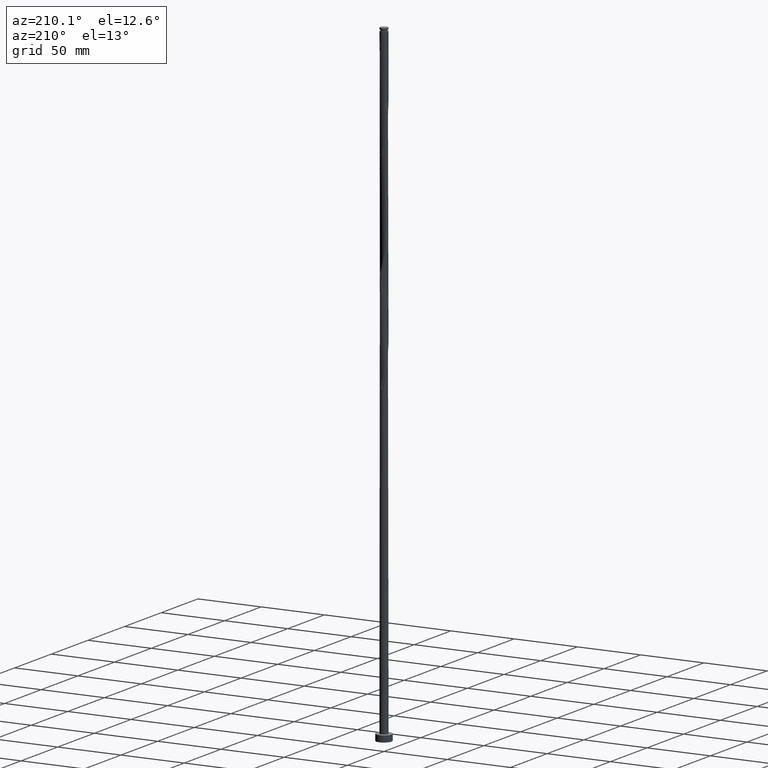
[diagram: clean part render]
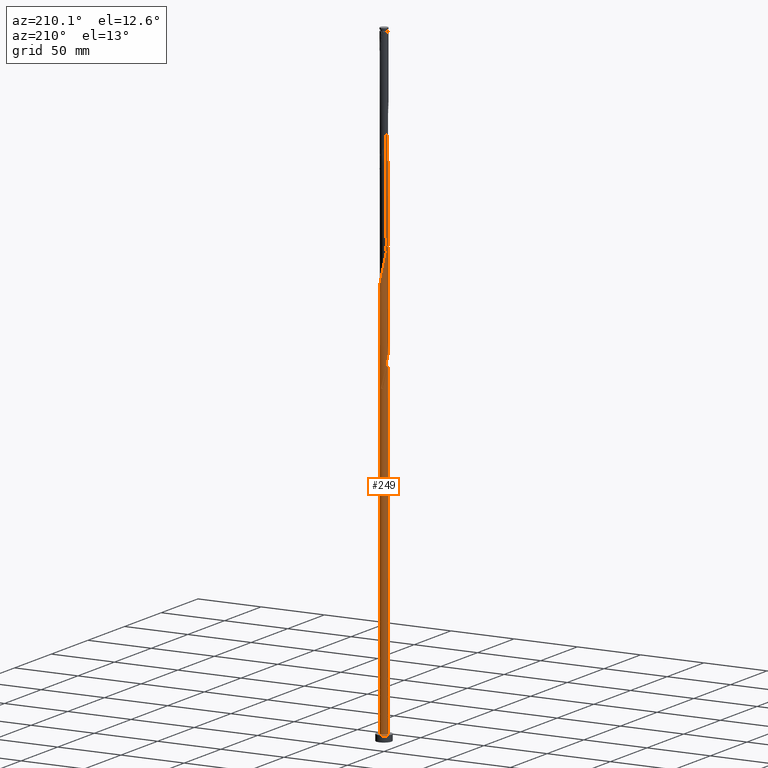
[diagram: same view with one face highlighted and labeled with its STEP entity id]
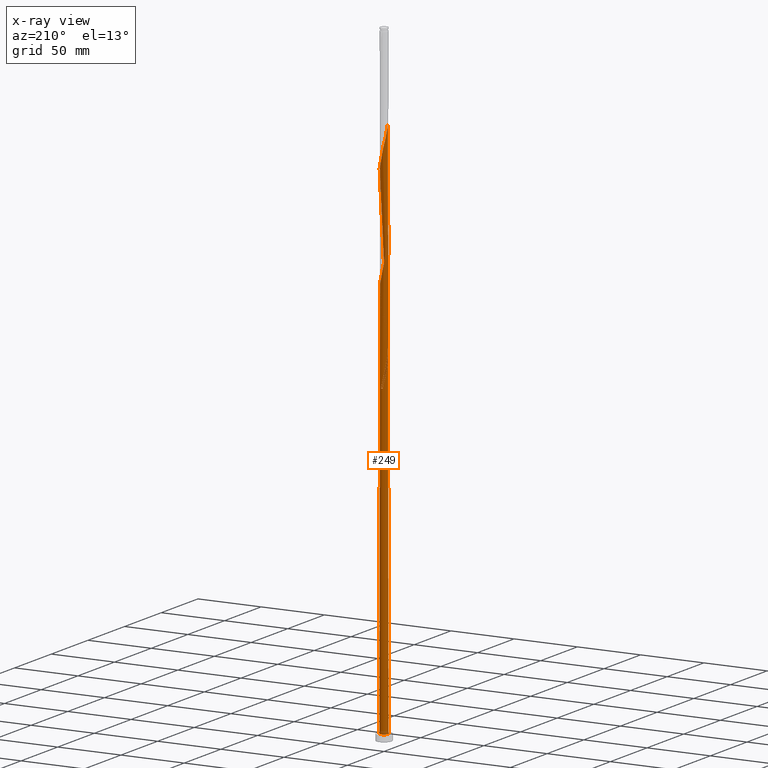
[diagram: x-ray of the same camera — body ghosted, the highlighted face saturated]
A machine part, auxiliary view. The second image highlights one B-rep face of the part: STEP entity #249.
The next image is the same camera in x-ray: the body ghosted, the highlighted face saturated — about 0% of this face is hidden behind the body in this view.
In plain terms, the highlighted cylindrical surface (bore or boss wall) has radius 3.1 mm, axis along (-0, -0, -1).
Its self-contained STEP definition (entity closure, byte-faithful):
#1 = CARTESIAN_POINT ( 'NONE',  ( -2.868731631591776576, 1.174895240395844365, 260.5845147440910523 ) ) ;
#22 = CARTESIAN_POINT ( 'NONE',  ( 0.6168922110061095809, 3.038000000000000256, 247.5636814107576811 ) ) ;
#24 = CARTESIAN_POINT ( 'NONE',  ( 2.400032639001089318, 1.985715407613430683, 316.5740980774244235 ) ) ;
#35 = CARTESIAN_POINT ( 'NONE',  ( -3.101192184336782454, 0.2929665238766490654, 347.8240980774242530 ) ) ;
#46 = CARTESIAN_POINT ( 'NONE',  ( 1.966522826515896938, 2.415783583249094146, 319.1782647440911092 ) ) ;
#47 = CIRCLE ( 'NONE', #1166, 3.100000000000000089 ) ;
#59 = CARTESIAN_POINT ( 'NONE',  ( -2.415783583249094590, 1.966522826515896938, 340.0115980774243667 ) ) ;
#70 = CARTESIAN_POINT ( 'NONE',  ( 1.457440644646406991, 2.753014550567536300, 321.7824314107576811 ) ) ;
#80 = CARTESIAN_POINT ( 'NONE',  ( 2.200749495431261415, -2.183277732758494238, 380.3761814107576242 ) ) ;
#89 = CARTESIAN_POINT ( 'NONE',  ( 2.400032639001089318, 1.985715407613430683, 399.9074314107576242 ) ) ;
#91 = CARTESIAN_POINT ( 'NONE',  ( -2.741310543123277377, 1.479337302465211890, 264.4907647440910523 ) ) ;
#92 = EDGE_CURVE ( 'NONE', #1476, #1601, #879, .T. ) ;
#99 = CARTESIAN_POINT ( 'NONE',  ( 0.6168922110061095809, 3.038000000000000256, 247.5636814107576811 ) ) ;
#105 = CARTESIAN_POINT ( 'NONE',  ( -2.584399066908316556, 1.711981735581151298, 424.6470147440911092 ) ) ;
#116 = CARTESIAN_POINT ( 'NONE',  ( 2.977241420417908291, 0.9161090944051727414, 394.6990980774243667 ) ) ;
#127 = CARTESIAN_POINT ( 'NONE',  ( -3.099975381959439780, -0.01235440186519696018, 265.7928480774244235 ) ) ;
#139 = CARTESIAN_POINT ( 'NONE',  ( -1.711981735581151520, -2.584399066908316556, 278.8136814107576811 ) ) ;
#149 = CARTESIAN_POINT ( 'NONE',  ( -0.6168922110061083597, 3.038000000000004253, 247.5636814107576811 ) ) ;
#162 = CYLINDRICAL_SURFACE ( 'NONE', #1021, 3.100000000000000089 ) ;
#190 = CARTESIAN_POINT ( 'NONE',  ( 2.984448712616015520, -0.8923498361452829597, 303.5532647440910523 ) ) ;
#200 = CARTESIAN_POINT ( 'NONE',  ( -1.174895240395844365, -2.868731631591776576, 364.7511814107577379 ) ) ;
#209 = VERTEX_POINT ( 'NONE', #302 ) ;
#210 = CARTESIAN_POINT ( 'NONE',  ( 3.101192184336781565, -0.2929665238766496760, 306.1574314107576811 ) ) ;
#219 = CARTESIAN_POINT ( 'NONE',  ( -2.200749495431262748, 2.183277732758493350, 338.7095147440911660 ) ) ;
#233 = CARTESIAN_POINT ( 'NONE',  ( 0.5926581800109677056, 3.042820448476398099, 325.6886814107576811 ) ) ;
#242 = CARTESIAN_POINT ( 'NONE',  ( -1.197723198435193703, 2.859275981770593944, 416.8345147440910523 ) ) ;
#249 = ADVANCED_FACE ( 'NONE', ( #1704 ), #162, .T. ) ;
#251 = CARTESIAN_POINT ( 'NONE',  ( 3.098758579582098882, 0.3176753276070441445, 392.0949314107577379 ) ) ;
#259 = CARTESIAN_POINT ( 'NONE',  ( -2.868731631591776576, 1.174895240395844365, 427.2511814107577379 ) ) ;
#260 = CARTESIAN_POINT ( 'NONE',  ( -3.099975381959436671, 0.01235440186519773734, 271.0011814107577379 ) ) ;
#272 = VERTEX_POINT ( 'NONE', #22 ) ;
#273 = CARTESIAN_POINT ( 'NONE',  ( -3.100000000000003642, 0.2990874262798472460, 431.1308376606780257 ) ) ;
#275 = CARTESIAN_POINT ( 'NONE',  ( 0.3176753276070437559, 3.098758579582094885, 248.8657647440910239 ) ) ;
#282 = ORIENTED_EDGE ( 'NONE', *, *, #836, .T. ) ;
#292 = DIRECTION ( 'NONE',  ( 1.000000000000000000, 0.000000000000000000, 0.000000000000000000 ) ) ;
#302 = CARTESIAN_POINT ( 'NONE',  ( -3.100000000000000089, 0.000000000000000000, 5.000000000000000000 ) ) ;
#313 = CARTESIAN_POINT ( 'NONE',  ( -2.415783583249094590, 1.966522826515896938, 256.6782647440910523 ) ) ;
#330 = EDGE_CURVE ( 'NONE', #693, #209, #1886, .T. ) ;
#339 = CARTESIAN_POINT ( 'NONE',  ( -2.570671591062184902, -1.732526355039321508, 356.9386814107576811 ) ) ;
#352 = CARTESIAN_POINT ( 'NONE',  ( 1.711981735581152186, 2.584399066908315667, 320.4803480774243098 ) ) ;
#359 = CARTESIAN_POINT ( 'NONE',  ( -3.100000000000000089, 0.000000000000000000, 500.0000000000000000 ) ) ;
#362 = CARTESIAN_POINT ( 'NONE',  ( -2.859275981770593944, -1.197723198435193703, 354.3345147440909955 ) ) ;
#373 = CARTESIAN_POINT ( 'NONE',  ( -0.6168922110061082487, 3.038000000000003364, 330.8970147440910523 ) ) ;
#382 = CARTESIAN_POINT ( 'NONE',  ( -3.100000000000004086, 1.339161813458410899E-15, 432.4068177660942638 ) ) ;
#383 = ORIENTED_EDGE ( 'NONE', *, *, #1723, .T. ) ;
#384 = CARTESIAN_POINT ( 'NONE',  ( -3.042820448476398987, 0.5926581800109660403, 346.5220147440909955 ) ) ;
#391 = ORIENTED_EDGE ( 'NONE', *, *, #708, .F. ) ;
#392 = CARTESIAN_POINT ( 'NONE',  ( 2.741310543123280485, 1.479337302465212112, 397.3032647440909386 ) ) ;
#403 = CARTESIAN_POINT ( 'NONE',  ( 1.732526355039321508, -2.570671591062184902, 377.7720147440911660 ) ) ;
#404 = CARTESIAN_POINT ( 'NONE',  ( -0.2929665238766484547, 3.101192184336778901, 251.4699314107577379 ) ) ;
#409 = ORIENTED_EDGE ( 'NONE', *, *, #92, .F. ) ;
#410 = CARTESIAN_POINT ( 'NONE',  ( 0.8923498361452831817, 2.984448712616015520, 407.7199314107577379 ) ) ;
#417 = EDGE_LOOP ( 'NONE', ( #391, #684, #829, #282, #1639, #565, #409, #383, #1421 ) ) ;
#418 = CARTESIAN_POINT ( 'NONE',  ( 2.868731631591776576, -1.174895240395844365, 385.5845147440910523 ) ) ;
#424 = CARTESIAN_POINT ( 'NONE',  ( -0.9161090944051741847, 2.977241420417907403, 415.5324314107577948 ) ) ;
#432 = AXIS2_PLACEMENT_3D ( 'NONE', #1219, #469, #1701 ) ;
#442 = CARTESIAN_POINT ( 'NONE',  ( -2.400032639001089318, -1.985715407613431127, 274.9074314107576242 ) ) ;
#469 = DIRECTION ( 'NONE',  ( 0.000000000000000000, 0.000000000000000000, 1.000000000000000000 ) ) ;
#496 = CARTESIAN_POINT ( 'NONE',  ( -1.966522826515897382, -2.415783583249094146, 360.8449314107576811 ) ) ;
#504 = DIRECTION ( 'NONE',  ( -0.000000000000000000, -0.000000000000000000, -1.000000000000000000 ) ) ;
#509 = CARTESIAN_POINT ( 'NONE',  ( 3.099975381959440668, 0.01235440186519599741, 307.4595147440909955 ) ) ;
#522 = CARTESIAN_POINT ( 'NONE',  ( 0.9161090944051741847, -2.977241420417907403, 290.5324314107576811 ) ) ;
#531 = CARTESIAN_POINT ( 'NONE',  ( 2.570671591062184458, 1.732526355039322619, 315.2720147440911092 ) ) ;
#541 = CARTESIAN_POINT ( 'NONE',  ( -2.741310543123280485, -1.479337302465212334, 355.6365980774242530 ) ) ;
#550 = VERTEX_POINT ( 'NONE', #382 ) ;
#551 = CARTESIAN_POINT ( 'NONE',  ( 2.584399066908316556, -1.711981735581152186, 382.9803480774243667 ) ) ;
#558 = CARTESIAN_POINT ( 'NONE',  ( 1.174895240395844365, 2.868731631591776576, 406.4178480774242530 ) ) ;
#564 = EDGE_CURVE ( 'NONE', #1601, #209, #662, .T. ) ;
#565 = ORIENTED_EDGE ( 'NONE', *, *, #564, .F. ) ;
#566 = CARTESIAN_POINT ( 'NONE',  ( 2.415783583249093702, -1.966522826515897382, 381.6782647440911660 ) ) ;
#568 = CARTESIAN_POINT ( 'NONE',  ( -3.098758579582094885, 0.3176753276070435894, 269.6990980774243667 ) ) ;
#583 = CARTESIAN_POINT ( 'NONE',  ( -3.038000000000000256, 0.6168922110061089148, 268.3970147440910523 ) ) ;
#590 = CARTESIAN_POINT ( 'NONE',  ( -3.098758579582098438, -0.3176753276070431453, 267.0949314107576242 ) ) ;
#601 = CARTESIAN_POINT ( 'NONE',  ( -0.8923498361452827377, -2.984448712616015520, 282.7199314107577379 ) ) ;
#610 = CARTESIAN_POINT ( 'NONE',  ( -0.9161090944051741847, 2.977241420417907403, 248.8657647440910239 ) ) ;
#621 = DIRECTION ( 'NONE',  ( -0.000000000000000000, -0.000000000000000000, -1.000000000000000000 ) ) ;
#631 = CARTESIAN_POINT ( 'NONE',  ( -1.985715407613431127, 2.400032639001089318, 254.0740980774243098 ) ) ;
#634 = CARTESIAN_POINT ( 'NONE',  ( -3.100000000000004086, 1.339161813458410702E-15, 265.7401510994275782 ) ) ;
#642 = CARTESIAN_POINT ( 'NONE',  ( -3.100000000000003642, 0.2990874262798472460, 264.4641709940115106 ) ) ;
#644 = CARTESIAN_POINT ( 'NONE',  ( -2.984448712616015520, 0.8923498361452827377, 345.2199314107576242 ) ) ;
#653 = CARTESIAN_POINT ( 'NONE',  ( 2.753014550567536300, -1.457440644646406991, 300.9490980774243098 ) ) ;
#662 = LINE ( 'NONE', #359, #1036 ) ;
#665 = CARTESIAN_POINT ( 'NONE',  ( 1.479337302465212112, -2.741310543123280485, 293.1365980774243098 ) ) ;
#673 = CARTESIAN_POINT ( 'NONE',  ( -2.584399066908316556, 1.711981735581151298, 341.3136814107576811 ) ) ;
#684 = ORIENTED_EDGE ( 'NONE', *, *, #1944, .F. ) ;
#685 = CARTESIAN_POINT ( 'NONE',  ( -3.038000000000003364, -0.6168922110061088038, 351.7303480774243098 ) ) ;
#693 = VERTEX_POINT ( 'NONE', #849 ) ;
#694 = CARTESIAN_POINT ( 'NONE',  ( 2.183277732758494238, 2.200749495431261415, 401.2095147440910523 ) ) ;
#698 = CARTESIAN_POINT ( 'NONE',  ( -2.183277732758490686, 2.200749495431261415, 260.5845147440911092 ) ) ;
#705 = CARTESIAN_POINT ( 'NONE',  ( -0.6168922110061082487, 3.038000000000003364, 414.2303480774243667 ) ) ;
#706 = CARTESIAN_POINT ( 'NONE',  ( -1.711981735581149078, 2.584399066908313447, 257.9803480774244235 ) ) ;
#708 = EDGE_CURVE ( 'NONE', #550, #1621, #1109, .T. ) ;
#719 = CARTESIAN_POINT ( 'NONE',  ( 3.042820448476398099, -0.5926581800109674836, 388.1886814107577379 ) ) ;
#722 = CARTESIAN_POINT ( 'NONE',  ( -3.100000000000000533, -5.461021730595916398E-16, 271.0538783887545833 ) ) ;
#727 = CARTESIAN_POINT ( 'NONE',  ( 0.5926581800109677056, 3.042820448476398099, 409.0220147440910523 ) ) ;
#738 = CARTESIAN_POINT ( 'NONE',  ( -2.741310543123280485, -1.479337302465212334, 272.3032647440909955 ) ) ;
#746 = CARTESIAN_POINT ( 'NONE',  ( -1.174895240395844365, -2.868731631591776576, 281.4178480774243098 ) ) ;
#793 = CARTESIAN_POINT ( 'NONE',  ( -2.200749495431262748, 2.183277732758493350, 255.3761814107576811 ) ) ;
#795 = CARTESIAN_POINT ( 'NONE',  ( 1.732526355039321508, -2.570671591062184902, 294.4386814107576242 ) ) ;
#807 = CARTESIAN_POINT ( 'NONE',  ( 3.042820448476398099, -0.5926581800109674836, 304.8553480774242530 ) ) ;
#820 = CARTESIAN_POINT ( 'NONE',  ( -0.5926581800109662623, -3.042820448476398987, 284.0220147440910523 ) ) ;
#829 = ORIENTED_EDGE ( 'NONE', *, *, #564, .T. ) ;
#830 = CARTESIAN_POINT ( 'NONE',  ( 2.977241420417908291, 0.9161090944051727414, 311.3657647440909386 ) ) ;
#836 = EDGE_CURVE ( 'NONE', #209, #693, #859, .T. ) ;
#841 = CARTESIAN_POINT ( 'NONE',  ( 1.197723198435193703, -2.859275981770593944, 291.8345147440910523 ) ) ;
#843 =( BOUNDED_CURVE ( )  B_SPLINE_CURVE ( 2, ( #634, #1506, #127, #590, #1849, #1665, #1194, #738, #1805, #442, #1046, #901, #139, #1967, #746, #601, #820, #968, #1706, #1714, #1584, #522, #841, #665, #795, #1871, #1561, #1123, #1881, #653, #1443, #190, #807, #210, #509, #1422, #1288, #830, #1402, #986, #531, #24, #1748, #46, #352, #70, #1257, #1433, #233, #1740, #1111, #1727, #373, #1892, #1271, #1590, #975, #1134, #219, #59, #673, #1280, #1571, #644, #384, #35, #1602, #1247, #685, #1901, #362, #541, #339, #948, #1861, #496, #1101, #958, #200, #1411, #1943, #994, #1454, #1174, #1622, #1334, #1471, #1159, #403, #1613, #80, #566, #551, #852, #418, #1485, #719, #1145, #1018, #251, #1152, #116, #1758, #392, #1168, #89, #694, #1772, #1640, #1786, #558, #410, #727, #868, #1299, #874, #705, #424, #242, #1914, #1765, #1936, #1012, #1326, #105, #1004, #259, #861, #1463, #273, #1026 ),
 .UNSPECIFIED., .F., .T. ) 
 B_SPLINE_CURVE_WITH_KNOTS ( ( 3, 2, 2, 2, 2, 2, 2, 2, 2, 2, 2, 2, 2, 2, 2, 2, 2, 2, 2, 2, 2, 2, 2, 2, 2, 2, 2, 2, 2, 2, 2, 2, 2, 2, 2, 2, 2, 2, 2, 2, 2, 2, 2, 2, 2, 2, 2, 2, 2, 2, 2, 2, 2, 2, 2, 2, 2, 2, 2, 2, 2, 2, 2, 2, 2, 3 ),
 ( 0.05452869021808703920, 0.05468750000000000000, 0.06250000000000000000, 0.07031250000000000000, 0.07812500000000000000, 0.08593750000000000000, 0.09375000000000000000, 0.1015625000000000000, 0.1093750000000000000, 0.1171875000000000000, 0.1250000000000000000, 0.1328125000000000000, 0.1406250000000000000, 0.1484375000000000000, 0.1562500000000000000, 0.1640625000000000000, 0.1718750000000000000, 0.1796875000000000000, 0.1875000000000000000, 0.1953125000000000000, 0.2031250000000000000, 0.2109375000000000000, 0.2187500000000000000, 0.2265625000000000000, 0.2343750000000000000, 0.2421875000000000000, 0.2500000000000000000, 0.2578125000000000000, 0.2656250000000000000, 0.2734375000000000000, 0.2812500000000000000, 0.2890625000000000000, 0.2968750000000000000, 0.3046875000000000000, 0.3125000000000000000, 0.3203125000000000000, 0.3281250000000000000, 0.3359375000000000000, 0.3437500000000000000, 0.3515625000000000000, 0.3593750000000000000, 0.3671875000000000000, 0.3750000000000000000, 0.3828125000000000000, 0.3906250000000000000, 0.3984375000000000000, 0.4062500000000000000, 0.4140625000000000000, 0.4218750000000000000, 0.4296875000000000000, 0.4375000000000000000, 0.4453125000000000000, 0.4531250000000000000, 0.4609375000000000000, 0.4687500000000000000, 0.4765625000000000000, 0.4843750000000000000, 0.4921875000000000000, 0.5000000000000000000, 0.5078125000000000000, 0.5156250000000000000, 0.5234375000000000000, 0.5312500000000000000, 0.5390625000000000000, 0.5468750000000000000, 0.5545286902180870392 ),
 .UNSPECIFIED. ) 
 CURVE ( )  GEOMETRIC_REPRESENTATION_ITEM ( )  RATIONAL_B_SPLINE_CURVE ( ( 0.9089165573359820893, 0.9090019243628869594, 0.9090909090909788937, 0.9047133878838848897, 0.9090909090909788937, 0.9047133878838848897, 0.9090909090909788937, 0.9047133878838848897, 0.9090909090909788937, 0.9047133878838848897, 0.9090909090909788937, 0.9047133878838848897, 0.9090909090909788937, 0.9047133878838848897, 0.9090909090909788937, 0.9047133878838848897, 0.9090909090909788937, 0.9047133878838848897, 0.9090909090909788937, 0.9047133878838848897, 0.9090909090909788937, 0.9047133878838848897, 0.9090909090909788937, 0.9047133878838848897, 0.9090909090909788937, 0.9047133878838848897, 0.9090909090909788937, 0.9047133878838848897, 0.9090909090909788937, 0.9047133878838848897, 0.9090909090909788937, 0.9047133878838848897, 0.9090909090909788937, 0.9047133878838848897, 0.9090909090909788937, 0.9047133878838848897, 0.9090909090909788937, 0.9047133878838848897, 0.9090909090909788937, 0.9047133878838848897, 0.9090909090909788937, 0.9047133878838848897, 0.9090909090909788937, 0.9047133878838848897, 0.9090909090909788937, 0.9047133878838848897, 0.9090909090909788937, 0.9047133878838848897, 0.9090909090909788937, 0.9047133878838848897, 0.9090909090909788937, 0.9047133878838848897, 0.9090909090909788937, 0.9047133878838848897, 0.9090909090909788937, 0.9047133878838848897, 0.9090909090909788937, 0.9047133878838848897, 0.9090909090909788937, 0.9047133878838848897, 0.9090909090909788937, 0.9047133878838848897, 0.9090909090909788937, 0.9047133878838848897, 0.9090909090909788937, 0.9047133878838848897, 0.9090909090909788937, 0.9047133878838848897, 0.9090909090909788937, 0.9047133878838848897, 0.9090909090909788937, 0.9047133878838848897, 0.9090909090909788937, 0.9047133878838848897, 0.9090909090909788937, 0.9047133878838848897, 0.9090909090909788937, 0.9047133878838848897, 0.9090909090909788937, 0.9047133878838848897, 0.9090909090909788937, 0.9047133878838848897, 0.9090909090909788937, 0.9047133878838848897, 0.9090909090909788937, 0.9047133878838848897, 0.9090909090909788937, 0.9047133878838848897, 0.9090909090909788937, 0.9047133878838848897, 0.9090909090909788937, 0.9047133878838848897, 0.9090909090909788937, 0.9047133878838848897, 0.9090909090909788937, 0.9047133878838848897, 0.9090909090909788937, 0.9047133878838848897, 0.9090909090909788937, 0.9047133878838848897, 0.9090909090909788937, 0.9047133878838848897, 0.9090909090909788937, 0.9047133878838848897, 0.9090909090909788937, 0.9047133878838848897, 0.9090909090909788937, 0.9047133878838848897, 0.9090909090909788937, 0.9047133878838848897, 0.9090909090909788937, 0.9047133878838848897, 0.9090909090909788937, 0.9047133878838848897, 0.9090909090909788937, 0.9047133878838848897, 0.9090909090909788937, 0.9047133878838848897, 0.9090909090909788937, 0.9047133878838848897, 0.9090909090909788937, 0.9047133878838848897, 0.9090909090909788937, 0.9047133878838848897, 0.9090909090909788937, 0.9047133878838848897, 0.9090909090909788937, 0.9047133878838848897, 0.9090909090909788937, 0.9048023726119768240, 0.9089165573359820893 ) ) 
 REPRESENTATION_ITEM ( '' )  );
#849 = CARTESIAN_POINT ( 'NONE',  ( 3.100000000000000089, 0.000000000000000000, 5.000000000000000000 ) ) ;
#852 = CARTESIAN_POINT ( 'NONE',  ( 2.753014550567536300, -1.457440644646406991, 384.2824314107576811 ) ) ;
#854 = CARTESIAN_POINT ( 'NONE',  ( -2.859275981770590835, 1.197723198435192815, 265.7928480774243667 ) ) ;
#859 = CIRCLE ( 'NONE', #432, 3.100000000000000089 ) ;
#861 = CARTESIAN_POINT ( 'NONE',  ( -2.984448712616015520, 0.8923498361452827377, 428.5532647440909955 ) ) ;
#862 = CARTESIAN_POINT ( 'NONE',  ( -3.100000000000000533, -5.461021730595916398E-16, 271.0538783887545833 ) ) ;
#868 = CARTESIAN_POINT ( 'NONE',  ( 0.2929665238766498425, 3.101192184336781565, 410.3240980774242530 ) ) ;
#874 = CARTESIAN_POINT ( 'NONE',  ( -0.3176753276070440890, 3.098758579582098882, 412.9282647440909955 ) ) ;
#879 =( BOUNDED_CURVE ( )  B_SPLINE_CURVE ( 2, ( #149, #610, #1209, #1695, #1683, #631, #793, #313, #1822, #1847, #1, #1811, #923, #642, #1963 ),
 .UNSPECIFIED., .F., .T. ) 
 B_SPLINE_CURVE_WITH_KNOTS ( ( 3, 2, 2, 2, 2, 2, 2, 3 ),
 ( 0.000000000000000000, 0.007812500000000000000, 0.01562500000000000000, 0.02343750000000000000, 0.03125000000000000000, 0.03906250000000000000, 0.04687500000000000000, 0.05452869021808703920 ),
 .UNSPECIFIED. ) 
 CURVE ( )  GEOMETRIC_REPRESENTATION_ITEM ( )  RATIONAL_B_SPLINE_CURVE ( ( 0.9090909090909788937, 0.9047133878838848897, 0.9090909090909788937, 0.9047133878838848897, 0.9090909090909788937, 0.9047133878838848897, 0.9090909090909788937, 0.9047133878838848897, 0.9090909090909788937, 0.9047133878838848897, 0.9090909090909788937, 0.9047133878838848897, 0.9090909090909788937, 0.9048023726119768240, 0.9089165573359820893 ) ) 
 REPRESENTATION_ITEM ( '' )  );
#883 = CARTESIAN_POINT ( 'NONE',  ( -3.100000000000004086, 1.339161813458410899E-15, 265.7401510994275782 ) ) ;
#901 = CARTESIAN_POINT ( 'NONE',  ( -1.966522826515897382, -2.415783583249094146, 277.5115980774243667 ) ) ;
#910 = DIRECTION ( 'NONE',  ( -1.000000000000000000, 0.000000000000000000, 0.000000000000000000 ) ) ;
#923 = CARTESIAN_POINT ( 'NONE',  ( -3.042820448476398987, 0.5926581800109660403, 263.1886814107576811 ) ) ;
#948 = CARTESIAN_POINT ( 'NONE',  ( -2.400032639001089318, -1.985715407613431127, 358.2407647440909955 ) ) ;
#958 = CARTESIAN_POINT ( 'NONE',  ( -1.457440644646405437, -2.753014550567536745, 363.4490980774243667 ) ) ;
#968 = CARTESIAN_POINT ( 'NONE',  ( -0.2929665238766494539, -3.101192184336781565, 285.3240980774243667 ) ) ;
#975 = CARTESIAN_POINT ( 'NONE',  ( -1.732526355039321952, 2.570671591062184902, 336.1053480774244235 ) ) ;
#986 = CARTESIAN_POINT ( 'NONE',  ( 2.741310543123280485, 1.479337302465212112, 313.9699314107576811 ) ) ;
#994 = CARTESIAN_POINT ( 'NONE',  ( -0.2929665238766494539, -3.101192184336781565, 368.6574314107577379 ) ) ;
#1004 = CARTESIAN_POINT ( 'NONE',  ( -2.753014550567536745, 1.457440644646405437, 425.9490980774243667 ) ) ;
#1012 = CARTESIAN_POINT ( 'NONE',  ( -2.200749495431262748, 2.183277732758493350, 422.0428480774244235 ) ) ;
#1013 = DIRECTION ( 'NONE',  ( 0.000000000000000000, 1.000000000000000000, -2.686023446673765844E-14 ) ) ;
#1018 = CARTESIAN_POINT ( 'NONE',  ( 3.099975381959440668, 0.01235440186519599741, 390.7928480774244804 ) ) ;
#1020 = CARTESIAN_POINT ( 'NONE',  ( -0.5926581800109649301, 3.042820448476395878, 252.7720147440911092 ) ) ;
#1021 = AXIS2_PLACEMENT_3D ( 'NONE', #1375, #621, #910 ) ;
#1026 = CARTESIAN_POINT ( 'NONE',  ( -3.100000000000004086, 1.339161813458410702E-15, 432.4068177660942638 ) ) ;
#1027 = CARTESIAN_POINT ( 'NONE',  ( -3.100000000000000977, 0.006177225460209394628, 271.0275248342372834 ) ) ;
#1036 = VECTOR ( 'NONE', #504, 1000.000000000000000 ) ;
#1044 = CARTESIAN_POINT ( 'NONE',  ( 0.000000000000000000, 0.000000000000000000, 5.000000000000000000 ) ) ;
#1046 = CARTESIAN_POINT ( 'NONE',  ( -2.183277732758493350, -2.200749495431261415, 276.2095147440910523 ) ) ;
#1101 = CARTESIAN_POINT ( 'NONE',  ( -1.711981735581151520, -2.584399066908316556, 362.1470147440911092 ) ) ;
#1109 = LINE ( 'NONE', #1722, #1961 ) ;
#1111 = CARTESIAN_POINT ( 'NONE',  ( -0.01235440186519578751, 3.099975381959440668, 328.2928480774244235 ) ) ;
#1123 = CARTESIAN_POINT ( 'NONE',  ( 2.415783583249093702, -1.966522826515897382, 298.3449314107575674 ) ) ;
#1134 = CARTESIAN_POINT ( 'NONE',  ( -1.985715407613431127, 2.400032639001089318, 337.4074314107577948 ) ) ;
#1145 = CARTESIAN_POINT ( 'NONE',  ( 3.101192184336781565, -0.2929665238766496760, 389.4907647440909955 ) ) ;
#1152 = CARTESIAN_POINT ( 'NONE',  ( 3.038000000000003364, 0.6168922110061085817, 393.3970147440910523 ) ) ;
#1153 = DIRECTION ( 'NONE',  ( -4.970141791967064741E-30, -2.238352872228141779E-14, -1.000000000000000000 ) ) ;
#1159 = CARTESIAN_POINT ( 'NONE',  ( 1.479337302465212112, -2.741310543123280485, 376.4699314107576242 ) ) ;
#1160 = CARTESIAN_POINT ( 'NONE',  ( -1.457440644646403882, 2.753014550567534524, 256.6782647440910523 ) ) ;
#1166 = AXIS2_PLACEMENT_3D ( 'NONE', #1641, #1153, #1013 ) ;
#1168 = CARTESIAN_POINT ( 'NONE',  ( 2.570671591062184458, 1.732526355039322619, 398.6053480774243667 ) ) ;
#1169 = CARTESIAN_POINT ( 'NONE',  ( -2.977241420417903406, 0.9161090944051740736, 267.0949314107576811 ) ) ;
#1174 = CARTESIAN_POINT ( 'NONE',  ( 0.3176753276070430343, -3.098758579582098438, 371.2615980774243667 ) ) ;
#1194 = CARTESIAN_POINT ( 'NONE',  ( -2.859275981770593944, -1.197723198435193703, 271.0011814107576811 ) ) ;
#1209 = CARTESIAN_POINT ( 'NONE',  ( -1.197723198435193703, 2.859275981770593944, 250.1678480774244235 ) ) ;
#1219 = CARTESIAN_POINT ( 'NONE',  ( 0.000000000000000000, 0.000000000000000000, 5.000000000000000000 ) ) ;
#1247 = CARTESIAN_POINT ( 'NONE',  ( -3.098758579582098438, -0.3176753276070431453, 350.4282647440911092 ) ) ;
#1257 = CARTESIAN_POINT ( 'NONE',  ( 1.174895240395844365, 2.868731631591776576, 323.0845147440909955 ) ) ;
#1258 = CARTESIAN_POINT ( 'NONE',  ( -0.6168922110061083597, 3.038000000000003809, 247.5636814107576811 ) ) ;
#1271 = CARTESIAN_POINT ( 'NONE',  ( -1.197723198435193703, 2.859275981770593944, 333.5011814107577948 ) ) ;
#1280 = CARTESIAN_POINT ( 'NONE',  ( -2.753014550567536745, 1.457440644646405437, 342.6157647440909955 ) ) ;
#1288 = CARTESIAN_POINT ( 'NONE',  ( 3.038000000000003364, 0.6168922110061085817, 310.0636814107576811 ) ) ;
#1299 = CARTESIAN_POINT ( 'NONE',  ( -0.01235440186519578751, 3.099975381959440668, 411.6261814107576811 ) ) ;
#1318 = CARTESIAN_POINT ( 'NONE',  ( -0.8923498361452809613, 2.984448712616012411, 254.0740980774243667 ) ) ;
#1326 = CARTESIAN_POINT ( 'NONE',  ( -2.415783583249094590, 1.966522826515896938, 423.3449314107576811 ) ) ;
#1334 = CARTESIAN_POINT ( 'NONE',  ( 0.9161090944051741847, -2.977241420417907403, 373.8657647440910523 ) ) ;
#1375 = CARTESIAN_POINT ( 'NONE',  ( 0.000000000000000000, 0.000000000000000000, 500.0000000000000000 ) ) ;
#1402 = CARTESIAN_POINT ( 'NONE',  ( 2.859275981770593944, 1.197723198435193703, 312.6678480774243667 ) ) ;
#1411 = CARTESIAN_POINT ( 'NONE',  ( -0.8923498361452827377, -2.984448712616015520, 366.0532647440909386 ) ) ;
#1420 = DIRECTION ( 'NONE',  ( -0.000000000000000000, -0.000000000000000000, -1.000000000000000000 ) ) ;
#1421 = ORIENTED_EDGE ( 'NONE', *, *, #1632, .F. ) ;
#1422 = CARTESIAN_POINT ( 'NONE',  ( 3.098758579582098882, 0.3176753276070441445, 308.7615980774244235 ) ) ;
#1433 = CARTESIAN_POINT ( 'NONE',  ( 0.8923498361452831817, 2.984448712616015520, 324.3865980774243667 ) ) ;
#1443 = CARTESIAN_POINT ( 'NONE',  ( 2.868731631591776576, -1.174895240395844365, 302.2511814107577379 ) ) ;
#1454 = CARTESIAN_POINT ( 'NONE',  ( 0.01235440186519611190, -3.099975381959440668, 369.9595147440911092 ) ) ;
#1456 = CARTESIAN_POINT ( 'NONE',  ( 0.01235440186519763152, 3.099975381959436671, 250.1678480774244235 ) ) ;
#1463 = CARTESIAN_POINT ( 'NONE',  ( -3.042820448476398987, 0.5926581800109660403, 429.8553480774243098 ) ) ;
#1471 = CARTESIAN_POINT ( 'NONE',  ( 1.197723198435193703, -2.859275981770593944, 375.1678480774243667 ) ) ;
#1472 = CARTESIAN_POINT ( 'NONE',  ( -2.570671591062182237, 1.732526355039320620, 263.1886814107577379 ) ) ;
#1476 = VERTEX_POINT ( 'NONE', #1258 ) ;
#1485 = CARTESIAN_POINT ( 'NONE',  ( 2.984448712616015520, -0.8923498361452829597, 386.8865980774243098 ) ) ;
#1492 =( BOUNDED_CURVE ( )  B_SPLINE_CURVE ( 2, ( #722, #1027, #260, #568, #583, #1169, #854, #91, #1472, #1633, #698, #1624, #706, #1160, #1781, #1318, #1020, #404, #1456, #275, #99 ),
 .UNSPECIFIED., .F., .T. ) 
 B_SPLINE_CURVE_WITH_KNOTS ( ( 3, 2, 2, 2, 2, 2, 2, 2, 2, 2, 3 ),
 ( 0.9295286902180871502, 0.9296875000000000000, 0.9375000000000000000, 0.9453125000000000000, 0.9531250000000000000, 0.9609375000000000000, 0.9687500000000000000, 0.9765625000000000000, 0.9843750000000000000, 0.9921875000000000000, 1.000000000000000000 ),
 .UNSPECIFIED. ) 
 CURVE ( )  GEOMETRIC_REPRESENTATION_ITEM ( )  RATIONAL_B_SPLINE_CURVE ( ( 0.9089165573359770933, 0.9090019243628819634, 0.9090909090909737866, 0.9047133878838798937, 0.9090909090909737866, 0.9047133878838798937, 0.9090909090909737866, 0.9047133878838798937, 0.9090909090909737866, 0.9047133878838798937, 0.9090909090909737866, 0.9047133878838798937, 0.9090909090909737866, 0.9047133878838798937, 0.9090909090909737866, 0.9047133878838798937, 0.9090909090909737866, 0.9047133878838798937, 0.9090909090909737866, 0.9047133878838798937, 0.9090909090909737866 ) ) 
 REPRESENTATION_ITEM ( '' )  );
#1506 = CARTESIAN_POINT ( 'NONE',  ( -3.100000000000003642, -0.006177225460204290204, 265.7665046539448781 ) ) ;
#1540 = AXIS2_PLACEMENT_3D ( 'NONE', #1044, #1664, #292 ) ;
#1561 = CARTESIAN_POINT ( 'NONE',  ( 2.200749495431261415, -2.183277732758494238, 297.0428480774243667 ) ) ;
#1571 = CARTESIAN_POINT ( 'NONE',  ( -2.868731631591776576, 1.174895240395844365, 343.9178480774243667 ) ) ;
#1584 = CARTESIAN_POINT ( 'NONE',  ( 0.6168922110061085817, -3.038000000000003364, 289.2303480774244804 ) ) ;
#1590 = CARTESIAN_POINT ( 'NONE',  ( -1.479337302465212778, 2.741310543123280041, 334.8032647440910523 ) ) ;
#1601 = VERTEX_POINT ( 'NONE', #883 ) ;
#1602 = CARTESIAN_POINT ( 'NONE',  ( -3.099975381959439780, -0.01235440186519696018, 349.1261814107576811 ) ) ;
#1613 = CARTESIAN_POINT ( 'NONE',  ( 1.985715407613431127, -2.400032639001089318, 379.0740980774243667 ) ) ;
#1621 = VERTEX_POINT ( 'NONE', #862 ) ;
#1622 = CARTESIAN_POINT ( 'NONE',  ( 0.6168922110061085817, -3.038000000000003364, 372.5636814107576242 ) ) ;
#1624 = CARTESIAN_POINT ( 'NONE',  ( -1.966522826515894495, 2.415783583249092370, 259.2824314107576811 ) ) ;
#1632 = EDGE_CURVE ( 'NONE', #1621, #272, #1492, .T. ) ;
#1633 = CARTESIAN_POINT ( 'NONE',  ( -2.400032639001084878, 1.985715407613428907, 261.8865980774243098 ) ) ;
#1639 = ORIENTED_EDGE ( 'NONE', *, *, #330, .T. ) ;
#1640 = CARTESIAN_POINT ( 'NONE',  ( 1.711981735581152186, 2.584399066908315667, 403.8136814107576242 ) ) ;
#1641 = CARTESIAN_POINT ( 'NONE',  ( 0.000000000000000000, 0.000000000000000000, 247.5636814107577379 ) ) ;
#1664 = DIRECTION ( 'NONE',  ( 0.000000000000000000, 0.000000000000000000, 1.000000000000000000 ) ) ;
#1665 = CARTESIAN_POINT ( 'NONE',  ( -2.977241420417907403, -0.9161090944051745177, 269.6990980774243667 ) ) ;
#1683 = CARTESIAN_POINT ( 'NONE',  ( -1.732526355039321952, 2.570671591062184902, 252.7720147440910523 ) ) ;
#1695 = CARTESIAN_POINT ( 'NONE',  ( -1.479337302465212778, 2.741310543123280041, 251.4699314107577379 ) ) ;
#1701 = DIRECTION ( 'NONE',  ( 1.000000000000000000, 0.000000000000000000, 0.000000000000000000 ) ) ;
#1704 = FACE_OUTER_BOUND ( 'NONE', #417, .T. ) ;
#1706 = CARTESIAN_POINT ( 'NONE',  ( 0.01235440186519611190, -3.099975381959440668, 286.6261814107577948 ) ) ;
#1714 = CARTESIAN_POINT ( 'NONE',  ( 0.3176753276070430343, -3.098758579582098438, 287.9282647440909386 ) ) ;
#1722 = CARTESIAN_POINT ( 'NONE',  ( -3.100000000000000089, 0.000000000000000000, 500.0000000000000000 ) ) ;
#1723 = EDGE_CURVE ( 'NONE', #1476, #272, #47, .T. ) ;
#1727 = CARTESIAN_POINT ( 'NONE',  ( -0.3176753276070440890, 3.098758579582098882, 329.5949314107577379 ) ) ;
#1740 = CARTESIAN_POINT ( 'NONE',  ( 0.2929665238766498425, 3.101192184336781565, 326.9907647440911092 ) ) ;
#1748 = CARTESIAN_POINT ( 'NONE',  ( 2.183277732758494238, 2.200749495431261415, 317.8761814107576811 ) ) ;
#1758 = CARTESIAN_POINT ( 'NONE',  ( 2.859275981770593944, 1.197723198435193703, 396.0011814107576242 ) ) ;
#1765 = CARTESIAN_POINT ( 'NONE',  ( -1.732526355039321952, 2.570671591062184902, 419.4386814107576811 ) ) ;
#1772 = CARTESIAN_POINT ( 'NONE',  ( 1.966522826515896938, 2.415783583249094146, 402.5115980774243098 ) ) ;
#1781 = CARTESIAN_POINT ( 'NONE',  ( -1.174895240395842144, 2.868731631591772580, 255.3761814107576811 ) ) ;
#1786 = CARTESIAN_POINT ( 'NONE',  ( 1.457440644646406991, 2.753014550567536300, 405.1157647440910523 ) ) ;
#1805 = CARTESIAN_POINT ( 'NONE',  ( -2.570671591062184902, -1.732526355039321508, 273.6053480774243667 ) ) ;
#1811 = CARTESIAN_POINT ( 'NONE',  ( -2.984448712616015520, 0.8923498361452827377, 261.8865980774243667 ) ) ;
#1822 = CARTESIAN_POINT ( 'NONE',  ( -2.584399066908316556, 1.711981735581151298, 257.9803480774243667 ) ) ;
#1847 = CARTESIAN_POINT ( 'NONE',  ( -2.753014550567536745, 1.457440644646405437, 259.2824314107576242 ) ) ;
#1849 = CARTESIAN_POINT ( 'NONE',  ( -3.038000000000003364, -0.6168922110061088038, 268.3970147440910523 ) ) ;
#1861 = CARTESIAN_POINT ( 'NONE',  ( -2.183277732758493350, -2.200749495431261415, 359.5428480774243098 ) ) ;
#1871 = CARTESIAN_POINT ( 'NONE',  ( 1.985715407613431127, -2.400032639001089318, 295.7407647440910523 ) ) ;
#1881 = CARTESIAN_POINT ( 'NONE',  ( 2.584399066908316556, -1.711981735581152186, 299.6470147440910523 ) ) ;
#1886 = CIRCLE ( 'NONE', #1540, 3.100000000000000089 ) ;
#1892 = CARTESIAN_POINT ( 'NONE',  ( -0.9161090944051741847, 2.977241420417907403, 332.1990980774243098 ) ) ;
#1901 = CARTESIAN_POINT ( 'NONE',  ( -2.977241420417907403, -0.9161090944051745177, 353.0324314107576811 ) ) ;
#1914 = CARTESIAN_POINT ( 'NONE',  ( -1.479337302465212778, 2.741310543123280041, 418.1365980774244235 ) ) ;
#1936 = CARTESIAN_POINT ( 'NONE',  ( -1.985715407613431127, 2.400032639001089318, 420.7407647440909386 ) ) ;
#1943 = CARTESIAN_POINT ( 'NONE',  ( -0.5926581800109662623, -3.042820448476398987, 367.3553480774243098 ) ) ;
#1944 = EDGE_CURVE ( 'NONE', #1601, #550, #843, .T. ) ;
#1961 = VECTOR ( 'NONE', #1420, 1000.000000000000000 ) ;
#1963 = CARTESIAN_POINT ( 'NONE',  ( -3.100000000000004086, 1.339161813458410702E-15, 265.7401510994275782 ) ) ;
#1967 = CARTESIAN_POINT ( 'NONE',  ( -1.457440644646405437, -2.753014550567536745, 280.1157647440909955 ) ) ;